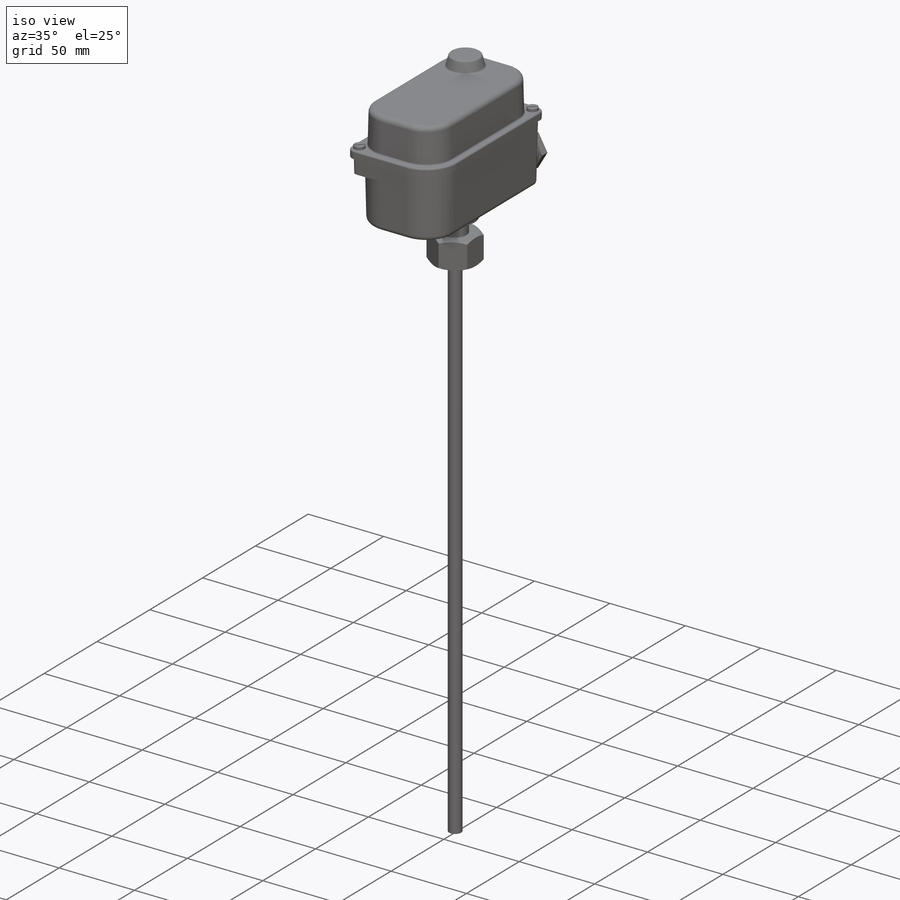
[diagram: iso view]
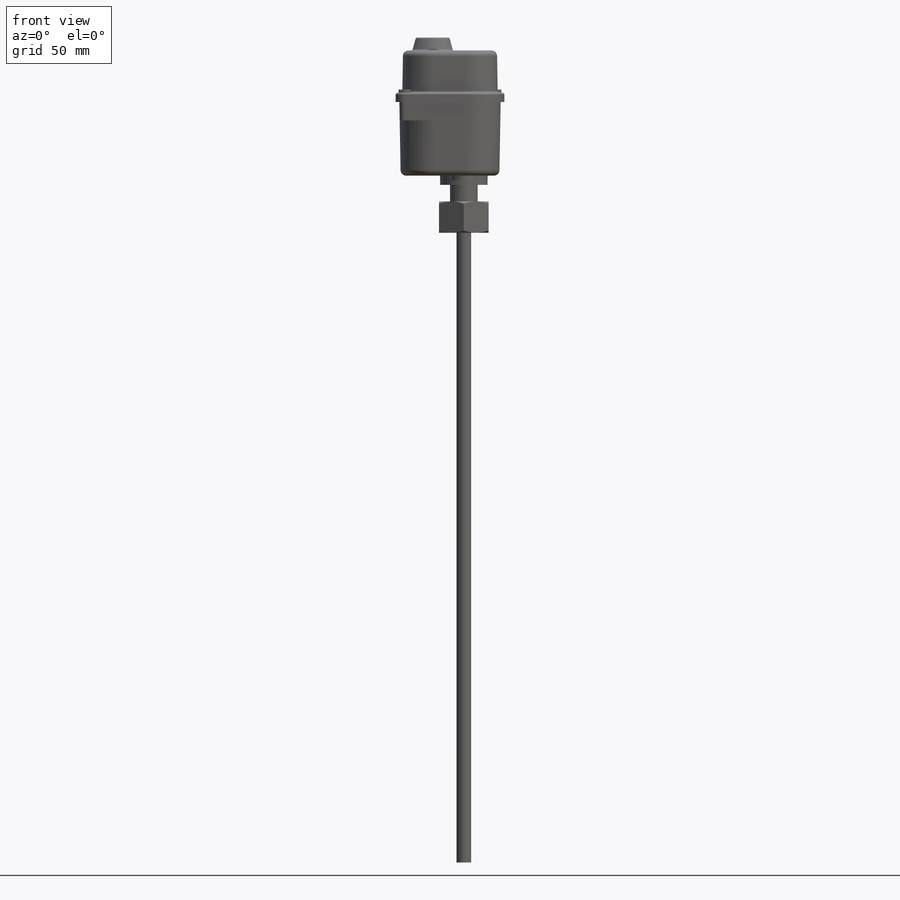
[diagram: front view]
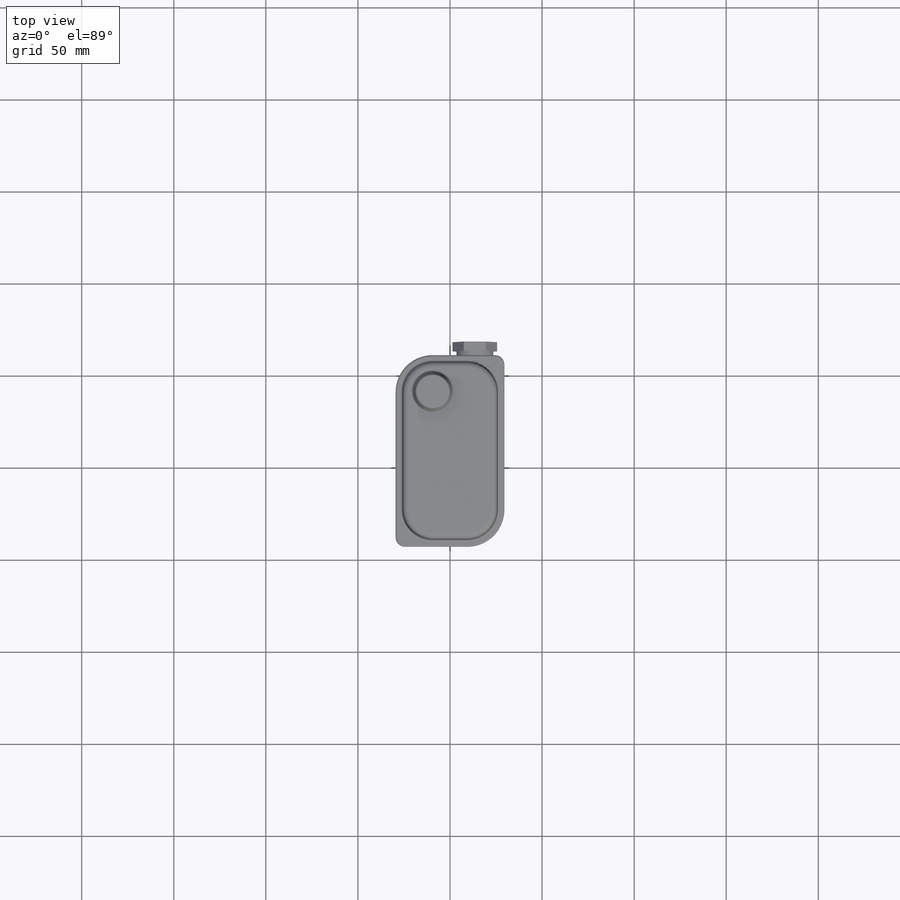
[diagram: top view]
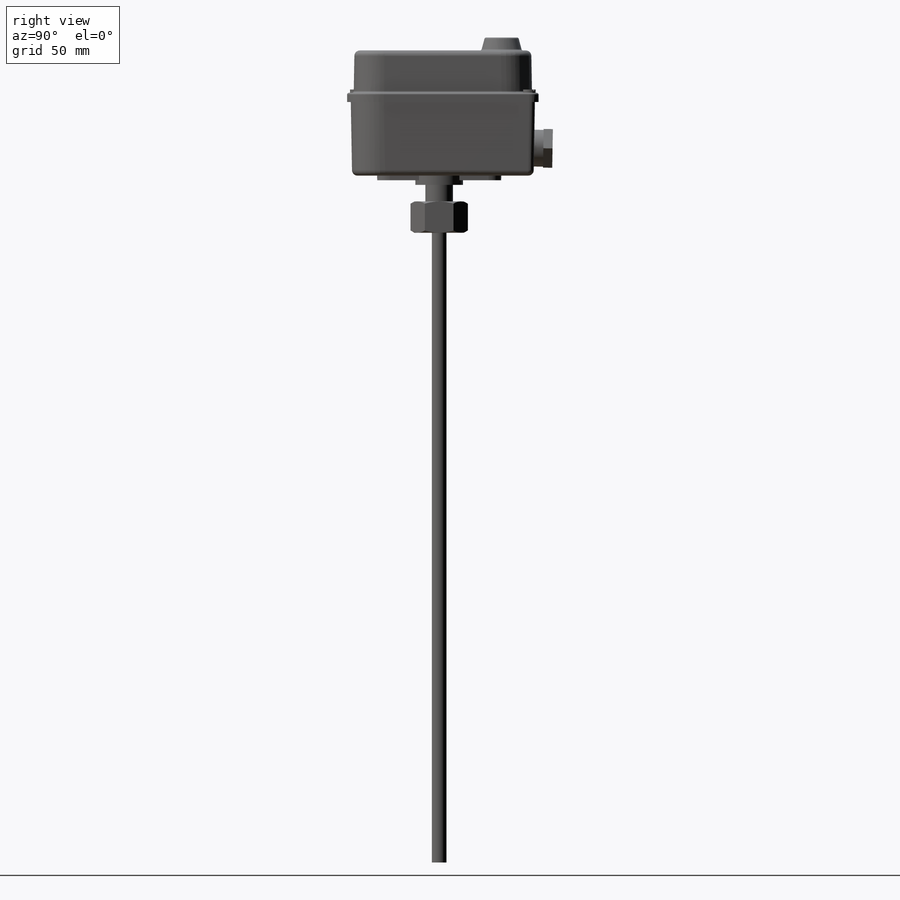
[diagram: right view]
SOLIDWORKS PART (.sldprt)
format: sldprt  version: not decoded by parser v0  size: 633,344 bytes
history: native  units: mm
features: sketch x14, extrude x10, fillet x7, plane x6, cut_revolve x2, material x1, cut_extrude x1, revolve x1 + 1 further entry (+11 scaffold rows collapsed; 3 parser-record rows omitted)
feature tree (57):
  scaffold x11  (default folders/planes/origin — collapsed)
  material  "Materiál <není určen>"
  "Těla ploch"
  plane  "Horní"
  plane  "Přední"
  plane  "Pravá"
  parser-record x3  (decoder bookkeeping rows leaked as tree rows — omitted from the tree; the rows remain in map.json)
  sketch  "Skica1"  dims[D1=59.0mm D2=104.0mm D3=54.0mm]
  extrude  "Přidat vysunutím1"  Depth=5mm
  sketch  "Skica2"  dims[D2=52.0mm D3=97.0mm D1=3.5mm]
  extrude  "Přidat vysunutím2"  Depth=28mm
  fillet  "Zaoblit1"  Radius=16.5mm
  fillet  "Zaoblit2"  Radius=20mm
  fillet  "Zaoblit3"  Radius=5mm
  sketch  "Skica3"  dims[D1=22.0mm]
  extrude  "Přidat vysunutím3"  Depth=7mm
  fillet  "Zaoblit4"  Radius=3mm
  fillet  "Zaoblit5"  Radius=1mm
  sketch  "Skica12"  dims[D1=6.8mm]
  extrude  "Přidat vysunutím8"  Depth=1.8mm
  sketch  "Skica13"  dims[c1.D2=~4.310701mm c2.D2=45.0deg c2.D3=1.3mm c2.D5=1.3mm c2.D1=0.0mm c2.D4=0.0mm]
  cut_extrude  "Odebrat vysunutím2"  Depth=1mm
  sketch  "q"  dims[D1=2.0mm]
  extrude  "Přidat vysunutím4"  Depth=40mm
  plane  "Rovina1"  Offset=10mm
  fillet  "Zaoblit7"  Radius=18mm
  sketch  "Skica14"  dims[D1=0.0mm]
  extrude  "Přidat vysunutím9"  Depth=10mm
  sketch  "Skica7"  dims[c1.D1=41.0mm c1.D2=26.0mm c2.D1=41.0mm c2.D2=26.0mm c2.D3=14.0mm c2.D4=22.0mm c3.D1=67.5mm]
  extrude  "Přidat vysunutím5"  Depth=2.5mm
  sketch  "Skica8"  dims[D1=26.0mm]
  extrude  "Přidat vysunutím6"  Depth=5mm
  fillet  "Zaoblit6"  Radius=3mm
  plane  "Rovina2"
  sketch  "Skica9"  dims[c1.D1=14.0mm c1.D2=15.0mm c2.D1=8.0mm c2.D3=14.0mm c2.D4=373.0mm c2.D5=~39.423288mm c3.D3=14.0mm c3.D5=~374.97546mm c3.D4=373.0mm]
  revolve  "Rotovat1"  Angle=360deg
  sketch  "Skica10"  dims[D1=27.0mm]
  extrude  "Přidat vysunutím7"  Depth=17mm
  sketch  "Skica11"  dims[c1.D1=8.0mm c1.D2=19.0mm c1.D3=~6.129051mm c2.D3=30.0deg c2.D1=2.5mm c2.D4=~1.65001mm c3.D4=45.0deg c3.D5=8.0mm]
  cut_revolve  "Odebrat rotací1"  Angle=360deg
  sketch  "Skica15"  dims[D1=21.0mm D2=16.0mm D3=15.0mm]
  extrude  "Přidat vysunutím10"  Depth=10mm
  plane  "Rovina3"
  sketch  "Skica16"  dims[D1=14.8mm D2=5.0mm D3=20.0mm D4=30.0mm D5=9.0mm]
  cut_revolve  "Odebrat rotací2"  Angle=360deg
decode coverage: 35 of 35 modeling features carry decoded parameters; 1 rows unclassified (native names shown)
note: ~ marks probable driven/reference dimensions
note: suppression state not decoded; provenance and decode notes live in map.json
